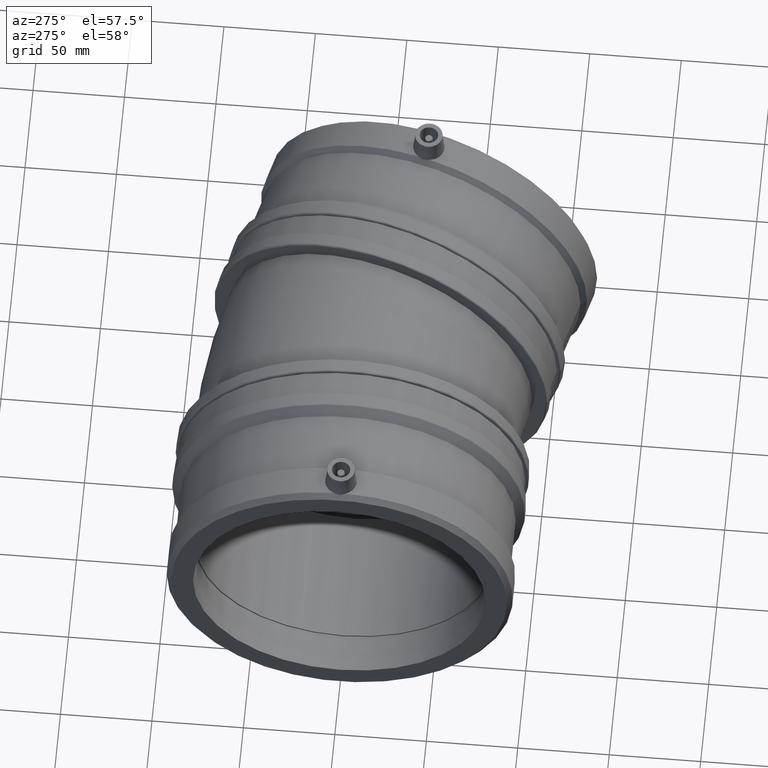
[diagram: clean part render]
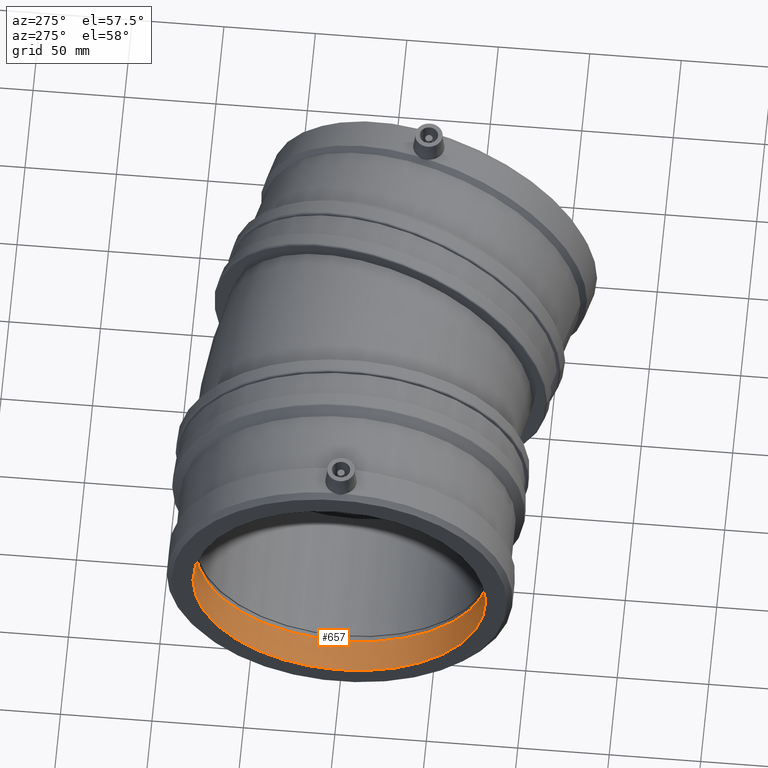
[diagram: same view with one face highlighted and labeled with its STEP entity id]
A machine part, auxiliary view. The second image highlights one B-rep face of the part: STEP entity #657.
In plain terms, the highlighted cylindrical surface (bore or boss wall) has radius 80 mm, axis along (1, 0, 0).
Its self-contained STEP definition (entity closure, byte-faithful):
#50=B_SPLINE_CURVE_WITH_KNOTS('',3,(#1532,#1533,#1534,#1535,#1536,#1537,
#1538,#1539,#1540,#1541),.UNSPECIFIED.,.F.,.F.,(4,2,2,2,4),(3.85149038447474,
4.06584607973304,4.43521552058587,4.80458496143869,5.018940656697),
 .UNSPECIFIED.);
#104=FACE_BOUND('',#255,.T.);
#161=FACE_OUTER_BOUND('',#254,.T.);
#254=EDGE_LOOP('',(#558));
#255=EDGE_LOOP('',(#559,#560));
#325=CIRCLE('',#754,80.);
#326=CIRCLE('',#755,80.);
#384=VERTEX_POINT('',#1520);
#385=VERTEX_POINT('',#1521);
#387=VERTEX_POINT('',#1547);
#448=EDGE_CURVE('',#384,#385,#50,.T.);
#451=EDGE_CURVE('',#387,#387,#325,.T.);
#452=EDGE_CURVE('',#384,#385,#326,.T.);
#558=ORIENTED_EDGE('',*,*,#451,.F.);
#559=ORIENTED_EDGE('',*,*,#452,.T.);
#560=ORIENTED_EDGE('',*,*,#448,.F.);
#611=CYLINDRICAL_SURFACE('',#753,80.);
#657=ADVANCED_FACE('',(#161,#104),#611,.F.);
#753=AXIS2_PLACEMENT_3D('',#1546,#941,#942);
#754=AXIS2_PLACEMENT_3D('',#1548,#943,#944);
#755=AXIS2_PLACEMENT_3D('',#1549,#945,#946);
#941=DIRECTION('center_axis',(1.,0.,0.));
#942=DIRECTION('ref_axis',(0.,1.,0.));
#943=DIRECTION('center_axis',(1.,0.,0.));
#944=DIRECTION('ref_axis',(0.,0.,-1.));
#945=DIRECTION('center_axis',(1.,0.,0.));
#946=DIRECTION('ref_axis',(0.,0.,-1.));
#1520=CARTESIAN_POINT('',(-103.623263669192,-5.72771062086828,79.7946948803214));
#1521=CARTESIAN_POINT('',(-103.623263669192,5.72771062086838,79.7946948803214));
#1532=CARTESIAN_POINT('Ctrl Pts',(-103.623263669192,-5.72771062086827,79.7946948803214));
#1533=CARTESIAN_POINT('Ctrl Pts',(-103.191166855029,-5.12199708438964,79.8381733579482));
#1534=CARTESIAN_POINT('Ctrl Pts',(-102.820467700986,-4.45416676750215,79.8789915098223));
#1535=CARTESIAN_POINT('Ctrl Pts',(-102.035627515561,-2.54445298779123,79.9686768568773));
#1536=CARTESIAN_POINT('Ctrl Pts',(-101.791458417518,-1.23123146950942,80.));
#1537=CARTESIAN_POINT('Ctrl Pts',(-101.791458417518,1.23123146950942,80.));
#1538=CARTESIAN_POINT('Ctrl Pts',(-102.035627515561,2.54445298779123,79.9686768568773));
#1539=CARTESIAN_POINT('Ctrl Pts',(-102.820467700986,4.45416676750219,79.8789915098223));
#1540=CARTESIAN_POINT('Ctrl Pts',(-103.191166855029,5.12199708438973,79.8381733579482));
#1541=CARTESIAN_POINT('Ctrl Pts',(-103.623263669192,5.72771062086838,79.7946948803214));
#1546=CARTESIAN_POINT('Origin',(-112.984713669192,0.,0.));
#1547=CARTESIAN_POINT('',(-122.346163669192,80.,0.));
#1548=CARTESIAN_POINT('Origin',(-122.346163669192,0.,0.));
#1549=CARTESIAN_POINT('Origin',(-103.623263669192,0.,0.));